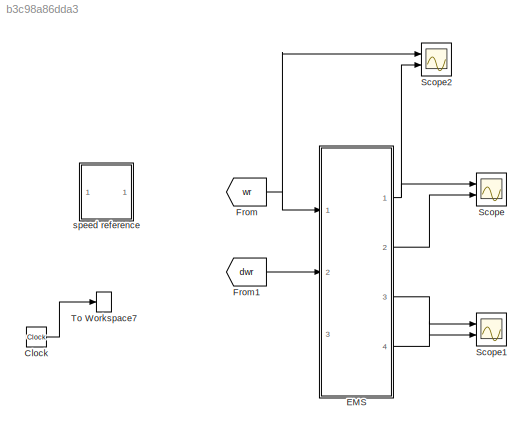
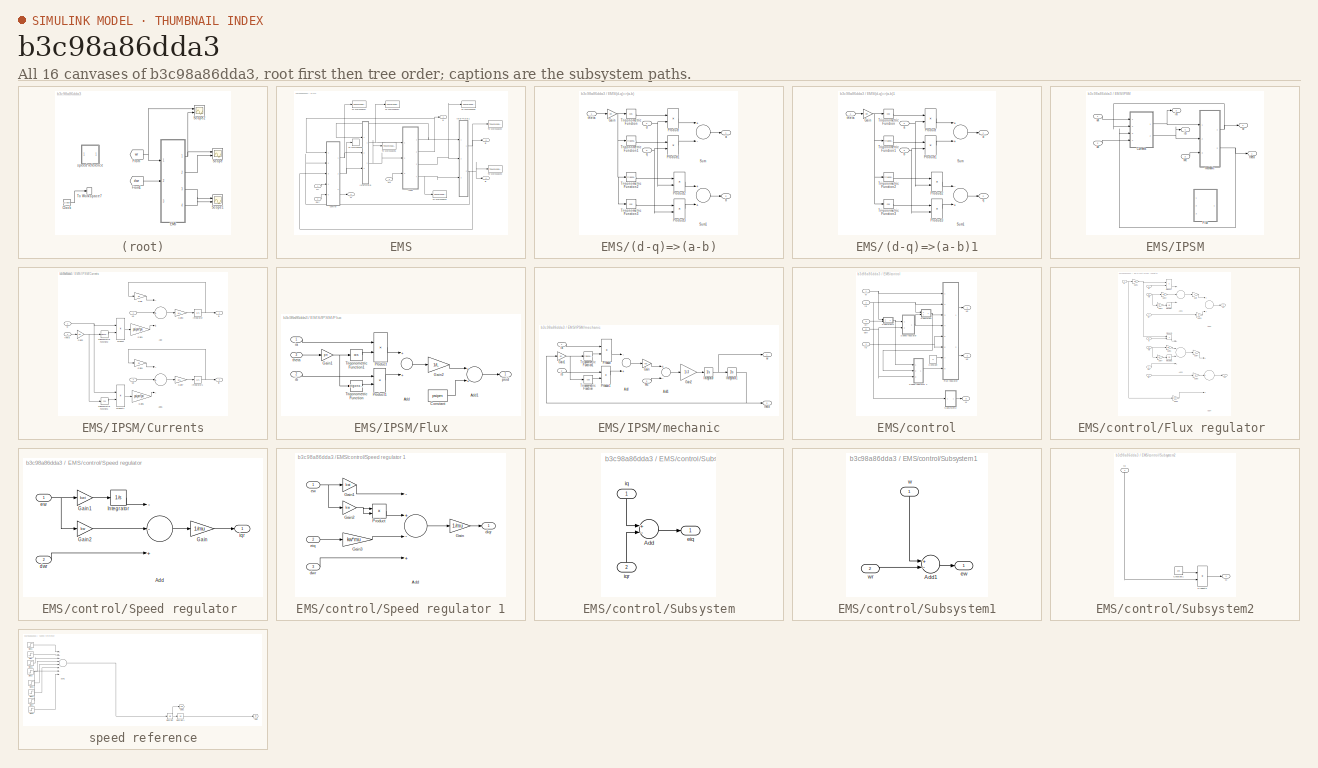
[diagram: thumbnail index - all 16 canvases of the model, root first then tree order]
MODEL slx_b3c98a86dda3
KIND model
BLOCK [Clock] Clock
BLOCK [SubSystem] EMS
  Ports = [3, 4]
  RequestExecContextInheritance = off
BLOCK [SubSystem] EMS/(d-q)=>(a-b)
  Ports = [3, 2]
  RequestExecContextInheritance = off
BLOCK [Gain] EMS/(d-q)=>(a-b)/Gain
  Gain = pn
  OutDataTypeStr = Inherit: Inherit via internal rule
  ParamDataTypeStr = Inherit: Inherit via internal rule
  SaturateOnIntegerOverflow = off
BLOCK [Product] EMS/(d-q)=>(a-b)/Product
  InputSameDT = off
  OutDataTypeStr = Inherit: Inherit via internal rule
  Ports = [2, 1]
  RndMeth = Floor
  SaturateOnIntegerOverflow = off
BLOCK [Product] EMS/(d-q)=>(a-b)/Product1
  InputSameDT = off
  OutDataTypeStr = Inherit: Inherit via internal rule
  Ports = [2, 1]
  RndMeth = Floor
  SaturateOnIntegerOverflow = off
BLOCK [Product] EMS/(d-q)=>(a-b)/Product2
  InputSameDT = off
  OutDataTypeStr = Inherit: Inherit via internal rule
  Ports = [2, 1]
  RndMeth = Floor
  SaturateOnIntegerOverflow = off
BLOCK [Product] EMS/(d-q)=>(a-b)/Product3
  InputSameDT = off
  OutDataTypeStr = Inherit: Inherit via internal rule
  Ports = [2, 1]
  RndMeth = Floor
  SaturateOnIntegerOverflow = off
BLOCK [Sum] EMS/(d-q)=>(a-b)/Sum
  Inputs = +-
  Ports = [2, 1]
BLOCK [Sum] EMS/(d-q)=>(a-b)/Sum1
  Ports = [2, 1]
BLOCK [Trigonometry] EMS/(d-q)=>(a-b)/Trigonometric Function
  Operator = cos
  Ports = [1, 1]
BLOCK [Trigonometry] EMS/(d-q)=>(a-b)/Trigonometric Function1
  Ports = [1, 1]
BLOCK [Trigonometry] EMS/(d-q)=>(a-b)/Trigonometric Function2
  Ports = [1, 1]
BLOCK [Trigonometry] EMS/(d-q)=>(a-b)/Trigonometric Function3
  Operator = cos
  Ports = [1, 1]
BLOCK [Outport] EMS/(d-q)=>(a-b)/a
  IconDisplay = Port number
BLOCK [Outport] EMS/(d-q)=>(a-b)/b
  IconDisplay = Port number
  Port = 2
BLOCK [Inport] EMS/(d-q)=>(a-b)/d
  IconDisplay = Port number
  Port = 2
BLOCK [Inport] EMS/(d-q)=>(a-b)/q
  IconDisplay = Port number
  Port = 3
BLOCK [Inport] EMS/(d-q)=>(a-b)/theta 
  IconDisplay = Port number
BLOCK [SubSystem] EMS/(d-q)=>(a-b)1
  Ports = [3, 2]
  RequestExecContextInheritance = off
BLOCK [Gain] EMS/(d-q)=>(a-b)1/Gain
  Gain = pn
  OutDataTypeStr = Inherit: Inherit via internal rule
  ParamDataTypeStr = Inherit: Inherit via internal rule
  SaturateOnIntegerOverflow = off
BLOCK [Product] EMS/(d-q)=>(a-b)1/Product
  InputSameDT = off
  OutDataTypeStr = Inherit: Inherit via internal rule
  Ports = [2, 1]
  RndMeth = Floor
  SaturateOnIntegerOverflow = off
BLOCK [Product] EMS/(d-q)=>(a-b)1/Product1
  InputSameDT = off
  OutDataTypeStr = Inherit: Inherit via internal rule
  Ports = [2, 1]
  RndMeth = Floor
  SaturateOnIntegerOverflow = off
BLOCK [Product] EMS/(d-q)=>(a-b)1/Product2
  InputSameDT = off
  OutDataTypeStr = Inherit: Inherit via internal rule
  Ports = [2, 1]
  RndMeth = Floor
  SaturateOnIntegerOverflow = off
BLOCK [Product] EMS/(d-q)=>(a-b)1/Product3
  InputSameDT = off
  OutDataTypeStr = Inherit: Inherit via internal rule
  Ports = [2, 1]
  RndMeth = Floor
  SaturateOnIntegerOverflow = off
BLOCK [Sum] EMS/(d-q)=>(a-b)1/Sum
  Ports = [2, 1]
BLOCK [Sum] EMS/(d-q)=>(a-b)1/Sum1
  Inputs = -+
  Ports = [2, 1]
BLOCK [Trigonometry] EMS/(d-q)=>(a-b)1/Trigonometric Function
  Operator = cos
  Ports = [1, 1]
BLOCK [Trigonometry] EMS/(d-q)=>(a-b)1/Trigonometric Function1
  Ports = [1, 1]
BLOCK [Trigonometry] EMS/(d-q)=>(a-b)1/Trigonometric Function2
  Ports = [1, 1]
BLOCK [Trigonometry] EMS/(d-q)=>(a-b)1/Trigonometric Function3
  Operator = cos
  Ports = [1, 1]
BLOCK [Inport] EMS/(d-q)=>(a-b)1/a
  IconDisplay = Port number
  Port = 2
BLOCK [Inport] EMS/(d-q)=>(a-b)1/b
  IconDisplay = Port number
  Port = 3
BLOCK [Outport] EMS/(d-q)=>(a-b)1/d
  IconDisplay = Port number
BLOCK [Outport] EMS/(d-q)=>(a-b)1/q
  IconDisplay = Port number
  Port = 2
BLOCK [Inport] EMS/(d-q)=>(a-b)1/theta 
  IconDisplay = Port number
BLOCK [SubSystem] EMS/IPSM
  Ports = [3, 4]
  RequestExecContextInheritance = off
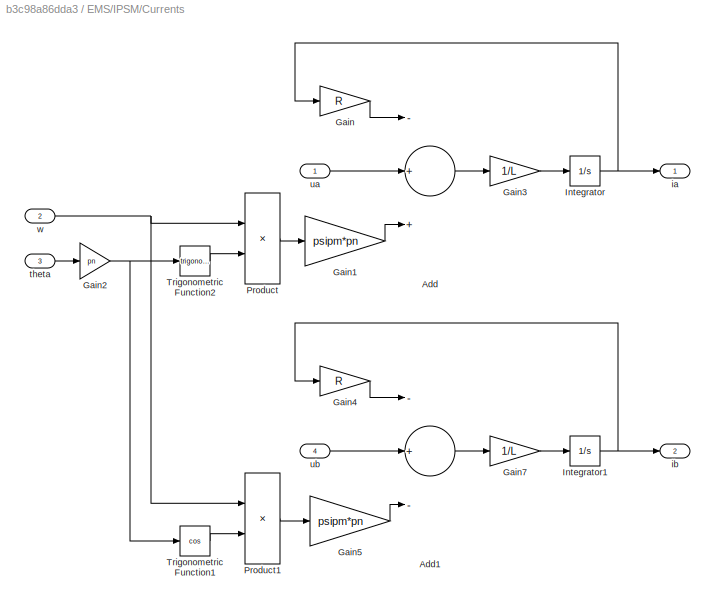
BLOCK [SubSystem] EMS/IPSM/Currents
  Ports = [4, 2]
  RequestExecContextInheritance = off
BLOCK [Sum] EMS/IPSM/Currents/Add
  InputSameDT = off
  Inputs = -++
  OutDataTypeStr = Inherit: Inherit via internal rule
  Ports = [3, 1]
  SaturateOnIntegerOverflow = off
BLOCK [Sum] EMS/IPSM/Currents/Add1
  InputSameDT = off
  Inputs = -+-
  OutDataTypeStr = Inherit: Inherit via internal rule
  Ports = [3, 1]
  SaturateOnIntegerOverflow = off
BLOCK [Gain] EMS/IPSM/Currents/Gain
  Gain = R
  OutDataTypeStr = Inherit: Inherit via internal rule
  ParamDataTypeStr = Inherit: Inherit via internal rule
  SaturateOnIntegerOverflow = off
BLOCK [Gain] EMS/IPSM/Currents/Gain1
  Gain = psipm*pn
  OutDataTypeStr = Inherit: Inherit via internal rule
  ParamDataTypeStr = Inherit: Inherit via internal rule
  SaturateOnIntegerOverflow = off
BLOCK [Gain] EMS/IPSM/Currents/Gain2
  Gain = pn
  OutDataTypeStr = Inherit: Inherit via internal rule
  ParamDataTypeStr = Inherit: Inherit via internal rule
  SaturateOnIntegerOverflow = off
BLOCK [Gain] EMS/IPSM/Currents/Gain3
  Gain = 1/L
  OutDataTypeStr = Inherit: Inherit via internal rule
  ParamDataTypeStr = Inherit: Inherit via internal rule
  SaturateOnIntegerOverflow = off
BLOCK [Gain] EMS/IPSM/Currents/Gain4
  Gain = R
  OutDataTypeStr = Inherit: Inherit via internal rule
  ParamDataTypeStr = Inherit: Inherit via internal rule
  SaturateOnIntegerOverflow = off
BLOCK [Gain] EMS/IPSM/Currents/Gain5
  Gain = psipm*pn
  OutDataTypeStr = Inherit: Inherit via internal rule
  ParamDataTypeStr = Inherit: Inherit via internal rule
  SaturateOnIntegerOverflow = off
BLOCK [Gain] EMS/IPSM/Currents/Gain7
  Gain = 1/L
  OutDataTypeStr = Inherit: Inherit via internal rule
  ParamDataTypeStr = Inherit: Inherit via internal rule
  SaturateOnIntegerOverflow = off
BLOCK [Integrator] EMS/IPSM/Currents/Integrator
  Ports = [1, 1]
BLOCK [Integrator] EMS/IPSM/Currents/Integrator1
  Ports = [1, 1]
BLOCK [Product] EMS/IPSM/Currents/Product
  InputSameDT = off
  OutDataTypeStr = Inherit: Inherit via internal rule
  Ports = [2, 1]
  RndMeth = Floor
  SaturateOnIntegerOverflow = off
BLOCK [Product] EMS/IPSM/Currents/Product1
  InputSameDT = off
  OutDataTypeStr = Inherit: Inherit via internal rule
  Ports = [2, 1]
  RndMeth = Floor
  SaturateOnIntegerOverflow = off
BLOCK [Trigonometry] EMS/IPSM/Currents/Trigonometric Function1
  Operator = cos
  Ports = [1, 1]
BLOCK [Trigonometry] EMS/IPSM/Currents/Trigonometric Function2
  Ports = [1, 1]
BLOCK [Outport] EMS/IPSM/Currents/ia
  IconDisplay = Port number
BLOCK [Outport] EMS/IPSM/Currents/ib
  IconDisplay = Port number
  Port = 2
BLOCK [Inport] EMS/IPSM/Currents/theta
  IconDisplay = Port number
  Port = 3
BLOCK [Inport] EMS/IPSM/Currents/ua
  IconDisplay = Port number
BLOCK [Inport] EMS/IPSM/Currents/ub
  IconDisplay = Port number
  Port = 4
BLOCK [Inport] EMS/IPSM/Currents/w
  IconDisplay = Port number
  Port = 2
BLOCK [SubSystem] EMS/IPSM/Flux
  Ports = [3, 1]
  RequestExecContextInheritance = off
BLOCK [Sum] EMS/IPSM/Flux/Add
  InputSameDT = off
  OutDataTypeStr = Inherit: Inherit via internal rule
  Ports = [2, 1]
  SaturateOnIntegerOverflow = off
BLOCK [Sum] EMS/IPSM/Flux/Add1
  InputSameDT = off
  OutDataTypeStr = Inherit: Inherit via internal rule
  Ports = [2, 1]
  SaturateOnIntegerOverflow = off
BLOCK [Constant] EMS/IPSM/Flux/Constant
  Value = psipm
BLOCK [Gain] EMS/IPSM/Flux/Gain1
  Gain = pn
  OutDataTypeStr = Inherit: Inherit via internal rule
  ParamDataTypeStr = Inherit: Inherit via internal rule
  SaturateOnIntegerOverflow = off
BLOCK [Gain] EMS/IPSM/Flux/Gain2
  Gain = 1/L
  OutDataTypeStr = Inherit: Inherit via internal rule
  ParamDataTypeStr = Inherit: Inherit via internal rule
  SaturateOnIntegerOverflow = off
BLOCK [Product] EMS/IPSM/Flux/Product
  InputSameDT = off
  OutDataTypeStr = Inherit: Inherit via internal rule
  Ports = [2, 1]
  RndMeth = Floor
  SaturateOnIntegerOverflow = off
BLOCK [Product] EMS/IPSM/Flux/Product1
  InputSameDT = off
  OutDataTypeStr = Inherit: Inherit via internal rule
  Ports = [2, 1]
  RndMeth = Floor
  SaturateOnIntegerOverflow = off
BLOCK [Trigonometry] EMS/IPSM/Flux/Trigonometric Function
  Ports = [1, 1]
BLOCK [Trigonometry] EMS/IPSM/Flux/Trigonometric Function1
  Operator = cos
  Ports = [1, 1]
BLOCK [Inport] EMS/IPSM/Flux/ia
  IconDisplay = Port number
BLOCK [Inport] EMS/IPSM/Flux/ib
  IconDisplay = Port number
  Port = 2
BLOCK [Outport] EMS/IPSM/Flux/psid
  IconDisplay = Port number
BLOCK [Inport] EMS/IPSM/Flux/theta
  IconDisplay = Port number
  Port = 3
BLOCK [Inport] EMS/IPSM/Mc
  IconDisplay = Port number
  Port = 3
BLOCK [Outport] EMS/IPSM/ia
  IconDisplay = Port number
  Port = 3
BLOCK [Outport] EMS/IPSM/ib
  IconDisplay = Port number
  Port = 4
BLOCK [SubSystem] EMS/IPSM/mechanic
  Ports = [3, 2]
  RequestExecContextInheritance = off
BLOCK [Sum] EMS/IPSM/mechanic/Add
  InputSameDT = off
  Inputs = -+
  OutDataTypeStr = Inherit: Inherit via internal rule
  Ports = [2, 1]
  SaturateOnIntegerOverflow = off
BLOCK [Sum] EMS/IPSM/mechanic/Add1
  InputSameDT = off
  Inputs = +-
  OutDataTypeStr = Inherit: Inherit via internal rule
  Ports = [2, 1]
  SaturateOnIntegerOverflow = off
BLOCK [Gain] EMS/IPSM/mechanic/Gain
  Gain = km
  OutDataTypeStr = Inherit: Inherit via internal rule
  ParamDataTypeStr = Inherit: Inherit via internal rule
  SaturateOnIntegerOverflow = off
BLOCK [Gain] EMS/IPSM/mechanic/Gain1
  Gain = pn
  OutDataTypeStr = Inherit: Inherit via internal rule
  ParamDataTypeStr = Inherit: Inherit via internal rule
  SaturateOnIntegerOverflow = off
BLOCK [Gain] EMS/IPSM/mechanic/Gain2
  Gain = 1/J
  OutDataTypeStr = Inherit: Inherit via internal rule
  ParamDataTypeStr = Inherit: Inherit via internal rule
  SaturateOnIntegerOverflow = off
BLOCK [Integrator] EMS/IPSM/mechanic/Integrator
  InitialCondition = 0.001
  Ports = [1, 1]
BLOCK [Integrator] EMS/IPSM/mechanic/Integrator1
  Ports = [1, 1]
BLOCK [Inport] EMS/IPSM/mechanic/Mc
  IconDisplay = Port number
  Port = 3
BLOCK [Product] EMS/IPSM/mechanic/Product
  InputSameDT = off
  OutDataTypeStr = Inherit: Inherit via internal rule
  Ports = [2, 1]
  RndMeth = Floor
  SaturateOnIntegerOverflow = off
BLOCK [Product] EMS/IPSM/mechanic/Product1
  InputSameDT = off
  OutDataTypeStr = Inherit: Inherit via internal rule
  Ports = [2, 1]
  RndMeth = Floor
  SaturateOnIntegerOverflow = off
BLOCK [Trigonometry] EMS/IPSM/mechanic/Trigonometric Function
  Operator = cos
  Ports = [1, 1]
BLOCK [Trigonometry] EMS/IPSM/mechanic/Trigonometric Function1
  Ports = [1, 1]
BLOCK [Inport] EMS/IPSM/mechanic/ia
  IconDisplay = Port number
BLOCK [Inport] EMS/IPSM/mechanic/ib
  IconDisplay = Port number
  Port = 2
BLOCK [Outport] EMS/IPSM/mechanic/theta
  IconDisplay = Port number
  Port = 2
BLOCK [Outport] EMS/IPSM/mechanic/w
  IconDisplay = Port number
BLOCK [Outport] EMS/IPSM/theta 
  IconDisplay = Port number
BLOCK [Inport] EMS/IPSM/ua
  IconDisplay = Port number
BLOCK [Inport] EMS/IPSM/ub
  IconDisplay = Port number
  Port = 2
BLOCK [Outport] EMS/IPSM/w
  IconDisplay = Port number
  Port = 2
BLOCK [Outport] EMS/M
  IconDisplay = Port number
  Port = 2
BLOCK [Inport] EMS/Mc
  IconDisplay = Port number
  Port = 3
BLOCK [ToWorkspace] EMS/To Workspace1
  FixptAsFi = on
  MaxDataPoints = inf
  Ports = [1]
  SampleTime = -1
  Save2DSignal = 3-D array (concatenate along third dimension)
  VariableName = ib
BLOCK [ToWorkspace] EMS/To Workspace2
  FixptAsFi = on
  MaxDataPoints = inf
  Ports = [1]
  SampleTime = -1
  Save2DSignal = 3-D array (concatenate along third dimension)
  VariableName = id
BLOCK [ToWorkspace] EMS/To Workspace3
  FixptAsFi = on
  MaxDataPoints = inf
  Ports = [1]
  SampleTime = -1
  Save2DSignal = 3-D array (concatenate along third dimension)
  VariableName = iq
BLOCK [ToWorkspace] EMS/To Workspace4
  FixptAsFi = on
  MaxDataPoints = inf
  Ports = [1]
  SampleTime = -1
  Save2DSignal = 3-D array (concatenate along third dimension)
  VariableName = ua
BLOCK [ToWorkspace] EMS/To Workspace5
  FixptAsFi = on
  MaxDataPoints = inf
  Ports = [1]
  SampleTime = -1
  Save2DSignal = 3-D array (concatenate along third dimension)
  VariableName = ub
BLOCK [ToWorkspace] EMS/To Workspace6
  FixptAsFi = on
  MaxDataPoints = inf
  Ports = [1]
  SampleTime = -1
  Save2DSignal = 3-D array (concatenate along third dimension)
  VariableName = ia
BLOCK [ToWorkspace] EMS/To Workspace7
  FixptAsFi = on
  MaxDataPoints = inf
  Ports = [1]
  SampleTime = -1
  Save2DSignal = 3-D array (concatenate along third dimension)
  VariableName = ud
BLOCK [ToWorkspace] EMS/To Workspace8
  FixptAsFi = on
  MaxDataPoints = inf
  Ports = [1]
  SampleTime = -1
  Save2DSignal = 3-D array (concatenate along third dimension)
  VariableName = uq
BLOCK [SubSystem] EMS/control
  Ports = [5, 3]
  RequestExecContextInheritance = off
BLOCK [Constant] EMS/control/Constant
  Value = 0
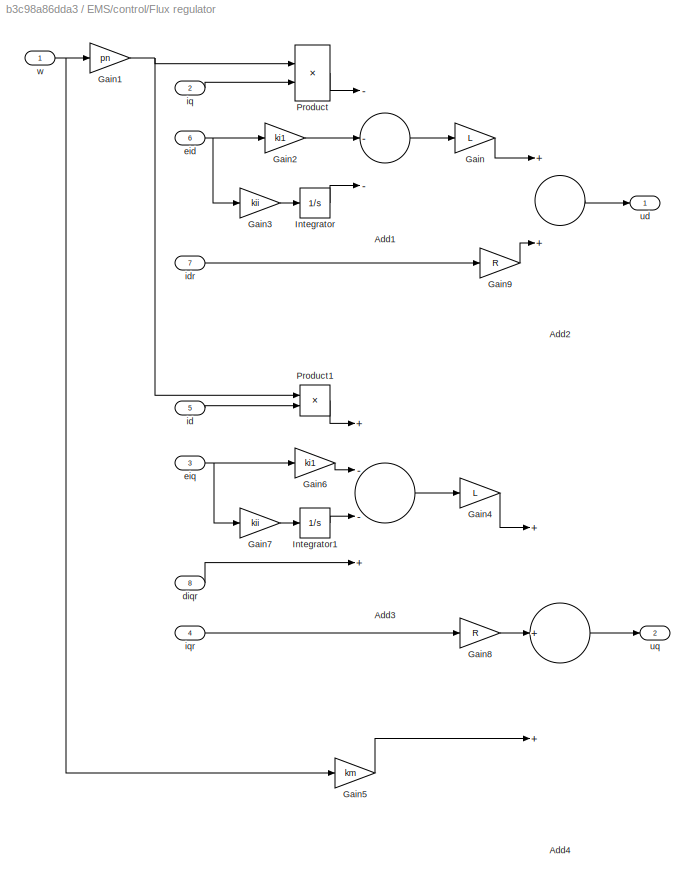
BLOCK [SubSystem] EMS/control/Flux regulator 
  Ports = [8, 2]
  RequestExecContextInheritance = off
BLOCK [Sum] EMS/control/Flux regulator /Add1
  InputSameDT = off
  Inputs = ---
  OutDataTypeStr = Inherit: Inherit via internal rule
  Ports = [3, 1]
  SaturateOnIntegerOverflow = off
BLOCK [Sum] EMS/control/Flux regulator /Add2
  InputSameDT = off
  OutDataTypeStr = Inherit: Inherit via internal rule
  Ports = [2, 1]
  SaturateOnIntegerOverflow = off
BLOCK [Sum] EMS/control/Flux regulator /Add3
  InputSameDT = off
  Inputs = +--+
  OutDataTypeStr = Inherit: Inherit via internal rule
  Ports = [4, 1]
  SaturateOnIntegerOverflow = off
BLOCK [Sum] EMS/control/Flux regulator /Add4
  InputSameDT = off
  Inputs = +++
  OutDataTypeStr = Inherit: Inherit via internal rule
  Ports = [3, 1]
  SaturateOnIntegerOverflow = off
BLOCK [Gain] EMS/control/Flux regulator /Gain
  Gain = L
  OutDataTypeStr = Inherit: Inherit via internal rule
  ParamDataTypeStr = Inherit: Inherit via internal rule
  SaturateOnIntegerOverflow = off
BLOCK [Gain] EMS/control/Flux regulator /Gain1
  Gain = pn
  OutDataTypeStr = Inherit: Inherit via internal rule
  ParamDataTypeStr = Inherit: Inherit via internal rule
  SaturateOnIntegerOverflow = off
BLOCK [Gain] EMS/control/Flux regulator /Gain2
  Gain = ki1
  OutDataTypeStr = Inherit: Inherit via internal rule
  ParamDataTypeStr = Inherit: Inherit via internal rule
  SaturateOnIntegerOverflow = off
BLOCK [Gain] EMS/control/Flux regulator /Gain3
  Gain = kii
  OutDataTypeStr = Inherit: Inherit via internal rule
  ParamDataTypeStr = Inherit: Inherit via internal rule
  SaturateOnIntegerOverflow = off
BLOCK [Gain] EMS/control/Flux regulator /Gain4
  Gain = L
  OutDataTypeStr = Inherit: Inherit via internal rule
  ParamDataTypeStr = Inherit: Inherit via internal rule
  SaturateOnIntegerOverflow = off
BLOCK [Gain] EMS/control/Flux regulator /Gain5
  Gain = km
  OutDataTypeStr = Inherit: Inherit via internal rule
  ParamDataTypeStr = Inherit: Inherit via internal rule
  SaturateOnIntegerOverflow = off
BLOCK [Gain] EMS/control/Flux regulator /Gain6
  Gain = ki1
  OutDataTypeStr = Inherit: Inherit via internal rule
  ParamDataTypeStr = Inherit: Inherit via internal rule
  SaturateOnIntegerOverflow = off
BLOCK [Gain] EMS/control/Flux regulator /Gain7
  Gain = kii
  OutDataTypeStr = Inherit: Inherit via internal rule
  ParamDataTypeStr = Inherit: Inherit via internal rule
  SaturateOnIntegerOverflow = off
BLOCK [Gain] EMS/control/Flux regulator /Gain8
  Gain = R
  OutDataTypeStr = Inherit: Inherit via internal rule
  ParamDataTypeStr = Inherit: Inherit via internal rule
  SaturateOnIntegerOverflow = off
BLOCK [Gain] EMS/control/Flux regulator /Gain9
  Gain = R
  OutDataTypeStr = Inherit: Inherit via internal rule
  ParamDataTypeStr = Inherit: Inherit via internal rule
  SaturateOnIntegerOverflow = off
BLOCK [Integrator] EMS/control/Flux regulator /Integrator
  Ports = [1, 1]
BLOCK [Integrator] EMS/control/Flux regulator /Integrator1
  Ports = [1, 1]
BLOCK [Product] EMS/control/Flux regulator /Product
  InputSameDT = off
  OutDataTypeStr = Inherit: Inherit via internal rule
  Ports = [2, 1]
  RndMeth = Floor
  SaturateOnIntegerOverflow = off
BLOCK [Product] EMS/control/Flux regulator /Product1
  InputSameDT = off
  OutDataTypeStr = Inherit: Inherit via internal rule
  Ports = [2, 1]
  RndMeth = Floor
  SaturateOnIntegerOverflow = off
BLOCK [Inport] EMS/control/Flux regulator /diqr
  IconDisplay = Port number
  Port = 8
BLOCK [Inport] EMS/control/Flux regulator /eid
  IconDisplay = Port number
  Port = 6
BLOCK [Inport] EMS/control/Flux regulator /eiq 
  IconDisplay = Port number
  Port = 3
BLOCK [Inport] EMS/control/Flux regulator /id
  IconDisplay = Port number
  Port = 5
BLOCK [Inport] EMS/control/Flux regulator /idr
  IconDisplay = Port number
  Port = 7
BLOCK [Inport] EMS/control/Flux regulator /iq
  IconDisplay = Port number
  Port = 2
BLOCK [Inport] EMS/control/Flux regulator /iqr 
  IconDisplay = Port number
  Port = 4
BLOCK [Outport] EMS/control/Flux regulator /ud
  IconDisplay = Port number
BLOCK [Outport] EMS/control/Flux regulator /uq 
  IconDisplay = Port number
  Port = 2
BLOCK [Inport] EMS/control/Flux regulator /w
  IconDisplay = Port number
BLOCK [Outport] EMS/control/M 
  IconDisplay = Port number
  Port = 3
BLOCK [SubSystem] EMS/control/Speed regulator 
  Ports = [2, 1]
  RequestExecContextInheritance = off
BLOCK [Sum] EMS/control/Speed regulator /Add
  InputSameDT = off
  Inputs = --+
  OutDataTypeStr = Inherit: Inherit via internal rule
  Ports = [3, 1]
  SaturateOnIntegerOverflow = off
BLOCK [Gain] EMS/control/Speed regulator /Gain
  Gain = 1/mu
  OutDataTypeStr = Inherit: Inherit via internal rule
  ParamDataTypeStr = Inherit: Inherit via internal rule
  SaturateOnIntegerOverflow = off
BLOCK [Gain] EMS/control/Speed regulator /Gain1
  Gain = kwi
  OutDataTypeStr = Inherit: Inherit via internal rule
  ParamDataTypeStr = Inherit: Inherit via internal rule
  SaturateOnIntegerOverflow = off
BLOCK [Gain] EMS/control/Speed regulator /Gain2
  Gain = kw
  OutDataTypeStr = Inherit: Inherit via internal rule
  ParamDataTypeStr = Inherit: Inherit via internal rule
  SaturateOnIntegerOverflow = off
BLOCK [Integrator] EMS/control/Speed regulator /Integrator
  Ports = [1, 1]
BLOCK [Inport] EMS/control/Speed regulator /dwr
  IconDisplay = Port number
  Port = 2
BLOCK [Inport] EMS/control/Speed regulator /ew
  IconDisplay = Port number
BLOCK [Outport] EMS/control/Speed regulator /iqr
  IconDisplay = Port number
BLOCK [SubSystem] EMS/control/Speed regulator 1
  Ports = [3, 1]
  RequestExecContextInheritance = off
BLOCK [Sum] EMS/control/Speed regulator 1/Add
  InputSameDT = off
  Inputs = -+-+
  OutDataTypeStr = Inherit: Inherit via internal rule
  Ports = [4, 1]
  SaturateOnIntegerOverflow = off
BLOCK [Gain] EMS/control/Speed regulator 1/Gain
  Gain = 1/mu
  OutDataTypeStr = Inherit: Inherit via internal rule
  ParamDataTypeStr = Inherit: Inherit via internal rule
  SaturateOnIntegerOverflow = off
BLOCK [Gain] EMS/control/Speed regulator 1/Gain1
  Gain = kwi
  OutDataTypeStr = Inherit: Inherit via internal rule
  ParamDataTypeStr = Inherit: Inherit via internal rule
  SaturateOnIntegerOverflow = off
BLOCK [Gain] EMS/control/Speed regulator 1/Gain2
  Gain = kw
  OutDataTypeStr = Inherit: Inherit via internal rule
  ParamDataTypeStr = Inherit: Inherit via internal rule
  SaturateOnIntegerOverflow = off
BLOCK [Gain] EMS/control/Speed regulator 1/Gain3
  Gain = kw*mu
  OutDataTypeStr = Inherit: Inherit via internal rule
  ParamDataTypeStr = Inherit: Inherit via internal rule
  SaturateOnIntegerOverflow = off
BLOCK [Product] EMS/control/Speed regulator 1/Product
  InputSameDT = off
  OutDataTypeStr = Inherit: Inherit via internal rule
  Ports = [2, 1]
  RndMeth = Floor
  SaturateOnIntegerOverflow = off
BLOCK [Outport] EMS/control/Speed regulator 1/diqr
  IconDisplay = Port number
BLOCK [Inport] EMS/control/Speed regulator 1/dwr
  IconDisplay = Port number
  Port = 3
BLOCK [Inport] EMS/control/Speed regulator 1/eiq
  IconDisplay = Port number
  Port = 2
BLOCK [Inport] EMS/control/Speed regulator 1/ew
  IconDisplay = Port number
BLOCK [SubSystem] EMS/control/Subsystem
  Ports = [2, 1]
  RequestExecContextInheritance = off
BLOCK [Sum] EMS/control/Subsystem/Add
  InputSameDT = off
  Inputs = +-
  OutDataTypeStr = Inherit: Inherit via internal rule
  Ports = [2, 1]
  SaturateOnIntegerOverflow = off
BLOCK [Outport] EMS/control/Subsystem/eiq
  IconDisplay = Port number
BLOCK [Inport] EMS/control/Subsystem/iq
  IconDisplay = Port number
BLOCK [Inport] EMS/control/Subsystem/iqr
  IconDisplay = Port number
  Port = 2
BLOCK [SubSystem] EMS/control/Subsystem1
  Ports = [2, 1]
  RequestExecContextInheritance = off
BLOCK [Sum] EMS/control/Subsystem1/Add1
  InputSameDT = off
  Inputs = +-
  OutDataTypeStr = Inherit: Inherit via internal rule
  Ports = [2, 1]
  SaturateOnIntegerOverflow = off
BLOCK [Outport] EMS/control/Subsystem1/ew
  IconDisplay = Port number
BLOCK [Inport] EMS/control/Subsystem1/w
  IconDisplay = Port number
BLOCK [Inport] EMS/control/Subsystem1/wr
  IconDisplay = Port number
  Port = 2
BLOCK [SubSystem] EMS/control/Subsystem2
  Ports = [1, 1]
  RequestExecContextInheritance = off
BLOCK [Constant] EMS/control/Subsystem2/Constant1
  Value = km
BLOCK [Outport] EMS/control/Subsystem2/M 
  IconDisplay = Port number
BLOCK [Product] EMS/control/Subsystem2/Product2
  InputSameDT = off
  OutDataTypeStr = Inherit: Inherit via internal rule
  Ports = [2, 1]
  RndMeth = Floor
  SaturateOnIntegerOverflow = off
BLOCK [Inport] EMS/control/Subsystem2/iq
  IconDisplay = Port number
BLOCK [Inport] EMS/control/dwr
  IconDisplay = Port number
  Port = 5
BLOCK [Inport] EMS/control/id
  IconDisplay = Port number
  Port = 3
BLOCK [Inport] EMS/control/iq
  IconDisplay = Port number
  Port = 2
BLOCK [Outport] EMS/control/ud
  IconDisplay = Port number
BLOCK [Outport] EMS/control/uq
  IconDisplay = Port number
  Port = 2
BLOCK [Inport] EMS/control/w
  IconDisplay = Port number
BLOCK [Inport] EMS/control/wr
  IconDisplay = Port number
  Port = 4
BLOCK [Inport] EMS/dwr
  IconDisplay = Port number
  Port = 2
BLOCK [Outport] EMS/id
  IconDisplay = Port number
  Port = 3
BLOCK [Outport] EMS/iq
  IconDisplay = Port number
  Port = 4
BLOCK [Outport] EMS/w
  IconDisplay = Port number
BLOCK [Inport] EMS/wr
  IconDisplay = Port number
BLOCK [From] From
  GotoTag = wr
  TagVisibility = global
BLOCK [From] From1
  GotoTag = dwr
  TagVisibility = global
BLOCK [Scope] Scope
  DataFormat = StructureWithTime
  Floating = off
  LimitDataPoints = off
  NumInputPorts = 2
  Ports = [2]
  SampleTime = 0
  SaveName = ScopeData7
  ShowLegends = off
  YMax = 1.008~164.85
  YMin = 0.912~149.15
BLOCK [Scope] Scope1
  DataFormat = StructureWithTime
  Floating = off
  LimitDataPoints = off
  NumInputPorts = 2
  Ports = [2]
  SampleTime = 0
  ShowLegends = off
  YMax = 1.008~164.85
  YMin = 0.912~149.15
BLOCK [Scope] Scope2
  DataFormat = StructureWithTime
  Floating = off
  LimitDataPoints = off
  NumInputPorts = 2
  Ports = [2]
  SampleTime = 0
  SaveName = ScopeData1
  ShowLegends = off
  YMax = 1.008~164.85
  YMin = 0.912~149.15
BLOCK [ToWorkspace] To Workspace7
  FixptAsFi = on
  MaxDataPoints = inf
  Ports = [1]
  SampleTime = -1
  Save2DSignal = 3-D array (concatenate along third dimension)
  VariableName = t
BLOCK [SubSystem] speed reference
  Ports = []
  RequestExecContextInheritance = off
BLOCK [Goto] speed reference/Goto
  GotoTag = wr
  TagVisibility = global
BLOCK [Goto] speed reference/Goto1
  GotoTag = dwr
  TagVisibility = global
BLOCK [Integrator] speed reference/Integrator
  Ports = [1, 1]
BLOCK [Integrator] speed reference/Integrator1
  Ports = [1, 1]
BLOCK [Step] speed reference/Step
  After = -wrmax/(ka*ta*ka*ta+ka*ta*(ta-2*ka*ta))
  Time = tex+ta*ka
BLOCK [Step] speed reference/Step1
  After = wrmax/(ka*ta*ka*ta+ka*ta*(ta-2*ka*ta))
  Time = tex
BLOCK [Step] speed reference/Step2
  After = wrmax/(ka*ta*ka*ta+ka*ta*(ta-2*ka*ta))
  Time = tex+ta
BLOCK [Step] speed reference/Step3
  After = -wrmax/(ka*ta*ka*ta+ka*ta*(ta-2*ka*ta))
  Time = tex+ta*ka+(ta-2*ta*ka)
BLOCK [Step] speed reference/Step4
  After = -wrmax/(ka*ta*ka*ta+ka*ta*(ta-2*ka*ta))
  Time = tex+ta+tcon+ta*ka
BLOCK [Step] speed reference/Step5
  After = wrmax/(ka*ta*ka*ta+ka*ta*(ta-2*ka*ta))
  Time = tex+ta+tcon
BLOCK [Step] speed reference/Step6
  After = wrmax/(ka*ta*ka*ta+ka*ta*(ta-2*ka*ta))
  Time = tex+ta+tcon+ta
BLOCK [Step] speed reference/Step7
  After = -wrmax/(ka*ta*ka*ta+ka*ta*(ta-2*ka*ta))
  Time = tex+ta+tcon+ta*ka+(ta-2*ta*ka)
BLOCK [Sum] speed reference/Sum1
  Inputs = ++++----
  Ports = [8, 1]
LINE Clock:1 -> To Workspace7:1
NET EMS/(d-q)=>(a-b)/Gain:1 -> EMS/(d-q)=>(a-b)/Trigonometric Function1:1, EMS/(d-q)=>(a-b)/Trigonometric Function2:1, EMS/(d-q)=>(a-b)/Trigonometric Function3:1, EMS/(d-q)=>(a-b)/Trigonometric Function:1
LINE EMS/(d-q)=>(a-b)/Product1:1 -> EMS/(d-q)=>(a-b)/Sum:2
LINE EMS/(d-q)=>(a-b)/Product2:1 -> EMS/(d-q)=>(a-b)/Sum1:1
LINE EMS/(d-q)=>(a-b)/Product3:1 -> EMS/(d-q)=>(a-b)/Sum1:2
LINE EMS/(d-q)=>(a-b)/Product:1 -> EMS/(d-q)=>(a-b)/Sum:1
LINE EMS/(d-q)=>(a-b)/Sum1:1 -> EMS/(d-q)=>(a-b)/b:1
LINE EMS/(d-q)=>(a-b)/Sum:1 -> EMS/(d-q)=>(a-b)/a:1
LINE EMS/(d-q)=>(a-b)/Trigonometric Function1:1 -> EMS/(d-q)=>(a-b)/Product1:1
LINE EMS/(d-q)=>(a-b)/Trigonometric Function2:1 -> EMS/(d-q)=>(a-b)/Product2:1
LINE EMS/(d-q)=>(a-b)/Trigonometric Function3:1 -> EMS/(d-q)=>(a-b)/Product3:1
LINE EMS/(d-q)=>(a-b)/Trigonometric Function:1 -> EMS/(d-q)=>(a-b)/Product:1
NET EMS/(d-q)=>(a-b)/d:1 -> EMS/(d-q)=>(a-b)/Product2:2, EMS/(d-q)=>(a-b)/Product:2
NET EMS/(d-q)=>(a-b)/q:1 -> EMS/(d-q)=>(a-b)/Product1:2, EMS/(d-q)=>(a-b)/Product3:2
LINE EMS/(d-q)=>(a-b)/theta :1 -> EMS/(d-q)=>(a-b)/Gain:1
NET EMS/(d-q)=>(a-b)1/Gain:1 -> EMS/(d-q)=>(a-b)1/Trigonometric Function1:1, EMS/(d-q)=>(a-b)1/Trigonometric Function2:1, EMS/(d-q)=>(a-b)1/Trigonometric Function3:1, EMS/(d-q)=>(a-b)1/Trigonometric Function:1
LINE EMS/(d-q)=>(a-b)1/Product1:1 -> EMS/(d-q)=>(a-b)1/Sum:2
LINE EMS/(d-q)=>(a-b)1/Product2:1 -> EMS/(d-q)=>(a-b)1/Sum1:1
LINE EMS/(d-q)=>(a-b)1/Product3:1 -> EMS/(d-q)=>(a-b)1/Sum1:2
LINE EMS/(d-q)=>(a-b)1/Product:1 -> EMS/(d-q)=>(a-b)1/Sum:1
LINE EMS/(d-q)=>(a-b)1/Sum1:1 -> EMS/(d-q)=>(a-b)1/q:1
LINE EMS/(d-q)=>(a-b)1/Sum:1 -> EMS/(d-q)=>(a-b)1/d:1
LINE EMS/(d-q)=>(a-b)1/Trigonometric Function1:1 -> EMS/(d-q)=>(a-b)1/Product1:1
LINE EMS/(d-q)=>(a-b)1/Trigonometric Function2:1 -> EMS/(d-q)=>(a-b)1/Product2:1
LINE EMS/(d-q)=>(a-b)1/Trigonometric Function3:1 -> EMS/(d-q)=>(a-b)1/Product3:1
LINE EMS/(d-q)=>(a-b)1/Trigonometric Function:1 -> EMS/(d-q)=>(a-b)1/Product:1
NET EMS/(d-q)=>(a-b)1/a:1 -> EMS/(d-q)=>(a-b)1/Product2:2, EMS/(d-q)=>(a-b)1/Product:2
NET EMS/(d-q)=>(a-b)1/b:1 -> EMS/(d-q)=>(a-b)1/Product1:2, EMS/(d-q)=>(a-b)1/Product3:2
LINE EMS/(d-q)=>(a-b)1/theta :1 -> EMS/(d-q)=>(a-b)1/Gain:1
NET EMS/(d-q)=>(a-b)1:1 -> EMS/To Workspace2:1, EMS/control:3, EMS/id:1
NET EMS/(d-q)=>(a-b)1:2 -> EMS/To Workspace3:1, EMS/control:2, EMS/iq:1
NET EMS/(d-q)=>(a-b):1 -> EMS/IPSM:1, EMS/To Workspace4:1
NET EMS/(d-q)=>(a-b):2 -> EMS/IPSM:2, EMS/To Workspace5:1
LINE EMS/IPSM/Currents/Add1:1 -> EMS/IPSM/Currents/Gain7:1
LINE EMS/IPSM/Currents/Add:1 -> EMS/IPSM/Currents/Gain3:1
LINE EMS/IPSM/Currents/Gain1:1 -> EMS/IPSM/Currents/Add:3
NET EMS/IPSM/Currents/Gain2:1 -> EMS/IPSM/Currents/Trigonometric Function1:1, EMS/IPSM/Currents/Trigonometric Function2:1
LINE EMS/IPSM/Currents/Gain3:1 -> EMS/IPSM/Currents/Integrator:1
LINE EMS/IPSM/Currents/Gain4:1 -> EMS/IPSM/Currents/Add1:1
LINE EMS/IPSM/Currents/Gain5:1 -> EMS/IPSM/Currents/Add1:3
LINE EMS/IPSM/Currents/Gain7:1 -> EMS/IPSM/Currents/Integrator1:1
LINE EMS/IPSM/Currents/Gain:1 -> EMS/IPSM/Currents/Add:1
NET EMS/IPSM/Currents/Integrator1:1 -> EMS/IPSM/Currents/Gain4:1, EMS/IPSM/Currents/ib:1
NET EMS/IPSM/Currents/Integrator:1 -> EMS/IPSM/Currents/Gain:1, EMS/IPSM/Currents/ia:1
LINE EMS/IPSM/Currents/Product1:1 -> EMS/IPSM/Currents/Gain5:1
LINE EMS/IPSM/Currents/Product:1 -> EMS/IPSM/Currents/Gain1:1
LINE EMS/IPSM/Currents/Trigonometric Function1:1 -> EMS/IPSM/Currents/Product1:2
LINE EMS/IPSM/Currents/Trigonometric Function2:1 -> EMS/IPSM/Currents/Product:2
LINE EMS/IPSM/Currents/theta:1 -> EMS/IPSM/Currents/Gain2:1
LINE EMS/IPSM/Currents/ua:1 -> EMS/IPSM/Currents/Add:2
LINE EMS/IPSM/Currents/ub:1 -> EMS/IPSM/Currents/Add1:2
NET EMS/IPSM/Currents/w:1 -> EMS/IPSM/Currents/Product1:1, EMS/IPSM/Currents/Product:1
NET EMS/IPSM/Currents:1 -> EMS/IPSM/ia:1, EMS/IPSM/mechanic:1
NET EMS/IPSM/Currents:2 -> EMS/IPSM/ib:1, EMS/IPSM/mechanic:2
LINE EMS/IPSM/Flux/Add1:1 -> EMS/IPSM/Flux/psid:1
LINE EMS/IPSM/Flux/Add:1 -> EMS/IPSM/Flux/Gain2:1
LINE EMS/IPSM/Flux/Constant:1 -> EMS/IPSM/Flux/Add1:2
NET EMS/IPSM/Flux/Gain1:1 -> EMS/IPSM/Flux/Trigonometric Function1:1, EMS/IPSM/Flux/Trigonometric Function:1
LINE EMS/IPSM/Flux/Gain2:1 -> EMS/IPSM/Flux/Add1:1
LINE EMS/IPSM/Flux/Product1:1 -> EMS/IPSM/Flux/Add:2
LINE EMS/IPSM/Flux/Product:1 -> EMS/IPSM/Flux/Add:1
LINE EMS/IPSM/Flux/Trigonometric Function1:1 -> EMS/IPSM/Flux/Product:2
LINE EMS/IPSM/Flux/Trigonometric Function:1 -> EMS/IPSM/Flux/Product1:2
LINE EMS/IPSM/Flux/ia:1 -> EMS/IPSM/Flux/Product:1
LINE EMS/IPSM/Flux/ib:1 -> EMS/IPSM/Flux/Product1:1
LINE EMS/IPSM/Flux/theta:1 -> EMS/IPSM/Flux/Gain1:1
LINE EMS/IPSM/Mc:1 -> EMS/IPSM/mechanic:3
LINE EMS/IPSM/mechanic/Add1:1 -> EMS/IPSM/mechanic/Gain2:1
LINE EMS/IPSM/mechanic/Add:1 -> EMS/IPSM/mechanic/Gain:1
NET EMS/IPSM/mechanic/Gain1:1 -> EMS/IPSM/mechanic/Trigonometric Function1:1, EMS/IPSM/mechanic/Trigonometric Function:1
LINE EMS/IPSM/mechanic/Gain2:1 -> EMS/IPSM/mechanic/Integrator:1
LINE EMS/IPSM/mechanic/Gain:1 -> EMS/IPSM/mechanic/Add1:1
NET EMS/IPSM/mechanic/Integrator1:1 -> EMS/IPSM/mechanic/Gain1:1, EMS/IPSM/mechanic/theta:1
NET EMS/IPSM/mechanic/Integrator:1 -> EMS/IPSM/mechanic/Integrator1:1, EMS/IPSM/mechanic/w:1
LINE EMS/IPSM/mechanic/Mc:1 -> EMS/IPSM/mechanic/Add1:2
LINE EMS/IPSM/mechanic/Product1:1 -> EMS/IPSM/mechanic/Add:2
LINE EMS/IPSM/mechanic/Product:1 -> EMS/IPSM/mechanic/Add:1
LINE EMS/IPSM/mechanic/Trigonometric Function1:1 -> EMS/IPSM/mechanic/Product:2
LINE EMS/IPSM/mechanic/Trigonometric Function:1 -> EMS/IPSM/mechanic/Product1:2
LINE EMS/IPSM/mechanic/ia:1 -> EMS/IPSM/mechanic/Product:1
LINE EMS/IPSM/mechanic/ib:1 -> EMS/IPSM/mechanic/Product1:1
NET EMS/IPSM/mechanic:1 -> EMS/IPSM/Currents:2, EMS/IPSM/w:1
NET EMS/IPSM/mechanic:2 -> EMS/IPSM/Currents:3, EMS/IPSM/theta :1
LINE EMS/IPSM/ua:1 -> EMS/IPSM/Currents:1
LINE EMS/IPSM/ub:1 -> EMS/IPSM/Currents:4
NET EMS/IPSM:1 -> EMS/(d-q)=>(a-b)1:1, EMS/(d-q)=>(a-b):1
NET EMS/IPSM:2 -> EMS/control:1, EMS/w:1
NET EMS/IPSM:3 -> EMS/(d-q)=>(a-b)1:2, EMS/To Workspace6:1
NET EMS/IPSM:4 -> EMS/(d-q)=>(a-b)1:3, EMS/To Workspace1:1
LINE EMS/Mc:1 -> EMS/IPSM:3
LINE EMS/control/Constant:1 -> EMS/control/Flux regulator :7
LINE EMS/control/Flux regulator /Add1:1 -> EMS/control/Flux regulator /Gain:1
LINE EMS/control/Flux regulator /Add2:1 -> EMS/control/Flux regulator /ud:1
LINE EMS/control/Flux regulator /Add3:1 -> EMS/control/Flux regulator /Gain4:1
LINE EMS/control/Flux regulator /Add4:1 -> EMS/control/Flux regulator /uq :1
NET EMS/control/Flux regulator /Gain1:1 -> EMS/control/Flux regulator /Product1:1, EMS/control/Flux regulator /Product:1
LINE EMS/control/Flux regulator /Gain2:1 -> EMS/control/Flux regulator /Add1:2
LINE EMS/control/Flux regulator /Gain3:1 -> EMS/control/Flux regulator /Integrator:1
LINE EMS/control/Flux regulator /Gain4:1 -> EMS/control/Flux regulator /Add4:1
LINE EMS/control/Flux regulator /Gain5:1 -> EMS/control/Flux regulator /Add4:3
LINE EMS/control/Flux regulator /Gain6:1 -> EMS/control/Flux regulator /Add3:2
LINE EMS/control/Flux regulator /Gain7:1 -> EMS/control/Flux regulator /Integrator1:1
LINE EMS/control/Flux regulator /Gain8:1 -> EMS/control/Flux regulator /Add4:2
LINE EMS/control/Flux regulator /Gain9:1 -> EMS/control/Flux regulator /Add2:2
LINE EMS/control/Flux regulator /Gain:1 -> EMS/control/Flux regulator /Add2:1
LINE EMS/control/Flux regulator /Integrator1:1 -> EMS/control/Flux regulator /Add3:3
LINE EMS/control/Flux regulator /Integrator:1 -> EMS/control/Flux regulator /Add1:3
LINE EMS/control/Flux regulator /Product1:1 -> EMS/control/Flux regulator /Add3:1
LINE EMS/control/Flux regulator /Product:1 -> EMS/control/Flux regulator /Add1:1
LINE EMS/control/Flux regulator /diqr:1 -> EMS/control/Flux regulator /Add3:4
NET EMS/control/Flux regulator /eid:1 -> EMS/control/Flux regulator /Gain2:1, EMS/control/Flux regulator /Gain3:1
NET EMS/control/Flux regulator /eiq :1 -> EMS/control/Flux regulator /Gain6:1, EMS/control/Flux regulator /Gain7:1
LINE EMS/control/Flux regulator /id:1 -> EMS/control/Flux regulator /Product1:2
LINE EMS/control/Flux regulator /idr:1 -> EMS/control/Flux regulator /Gain9:1
LINE EMS/control/Flux regulator /iq:1 -> EMS/control/Flux regulator /Product:2
LINE EMS/control/Flux regulator /iqr :1 -> EMS/control/Flux regulator /Gain8:1
NET EMS/control/Flux regulator /w:1 -> EMS/control/Flux regulator /Gain1:1, EMS/control/Flux regulator /Gain5:1
LINE EMS/control/Flux regulator :1 -> EMS/control/ud:1
LINE EMS/control/Flux regulator :2 -> EMS/control/uq:1
LINE EMS/control/Speed regulator /Add:1 -> EMS/control/Speed regulator /Gain:1
LINE EMS/control/Speed regulator /Gain1:1 -> EMS/control/Speed regulator /Integrator:1
LINE EMS/control/Speed regulator /Gain2:1 -> EMS/control/Speed regulator /Add:2
LINE EMS/control/Speed regulator /Gain:1 -> EMS/control/Speed regulator /iqr:1
LINE EMS/control/Speed regulator /Integrator:1 -> EMS/control/Speed regulator /Add:1
LINE EMS/control/Speed regulator /dwr:1 -> EMS/control/Speed regulator /Add:3
NET EMS/control/Speed regulator /ew:1 -> EMS/control/Speed regulator /Gain1:1, EMS/control/Speed regulator /Gain2:1
LINE EMS/control/Speed regulator 1/Add:1 -> EMS/control/Speed regulator 1/Gain:1
LINE EMS/control/Speed regulator 1/Gain1:1 -> EMS/control/Speed regulator 1/Add:1
NET EMS/control/Speed regulator 1/Gain2:1 -> EMS/control/Speed regulator 1/Product:1, EMS/control/Speed regulator 1/Product:2
LINE EMS/control/Speed regulator 1/Gain3:1 -> EMS/control/Speed regulator 1/Add:3
LINE EMS/control/Speed regulator 1/Gain:1 -> EMS/control/Speed regulator 1/diqr:1
LINE EMS/control/Speed regulator 1/Product:1 -> EMS/control/Speed regulator 1/Add:2
LINE EMS/control/Speed regulator 1/dwr:1 -> EMS/control/Speed regulator 1/Add:4
LINE EMS/control/Speed regulator 1/eiq:1 -> EMS/control/Speed regulator 1/Gain3:1
NET EMS/control/Speed regulator 1/ew:1 -> EMS/control/Speed regulator 1/Gain1:1, EMS/control/Speed regulator 1/Gain2:1
LINE EMS/control/Speed regulator 1:1 -> EMS/control/Flux regulator :8
NET EMS/control/Speed regulator :1 -> EMS/control/Flux regulator :4, EMS/control/Subsystem:2
LINE EMS/control/Subsystem/Add:1 -> EMS/control/Subsystem/eiq:1
LINE EMS/control/Subsystem/iq:1 -> EMS/control/Subsystem/Add:1
LINE EMS/control/Subsystem/iqr:1 -> EMS/control/Subsystem/Add:2
LINE EMS/control/Subsystem1/Add1:1 -> EMS/control/Subsystem1/ew:1
LINE EMS/control/Subsystem1/w:1 -> EMS/control/Subsystem1/Add1:1
LINE EMS/control/Subsystem1/wr:1 -> EMS/control/Subsystem1/Add1:2
NET EMS/control/Subsystem1:1 -> EMS/control/Speed regulator 1:1, EMS/control/Speed regulator :1
LINE EMS/control/Subsystem2/Constant1:1 -> EMS/control/Subsystem2/Product2:1
LINE EMS/control/Subsystem2/Product2:1 -> EMS/control/Subsystem2/M :1
LINE EMS/control/Subsystem2/iq:1 -> EMS/control/Subsystem2/Product2:2
LINE EMS/control/Subsystem2:1 -> EMS/control/M :1
NET EMS/control/Subsystem:1 -> EMS/control/Flux regulator :3, EMS/control/Speed regulator 1:2
NET EMS/control/dwr:1 -> EMS/control/Speed regulator 1:3, EMS/control/Speed regulator :2
NET EMS/control/id:1 -> EMS/control/Flux regulator :5, EMS/control/Flux regulator :6
NET EMS/control/iq:1 -> EMS/control/Flux regulator :2, EMS/control/Subsystem2:1, EMS/control/Subsystem:1
NET EMS/control/w:1 -> EMS/control/Flux regulator :1, EMS/control/Subsystem1:1
LINE EMS/control/wr:1 -> EMS/control/Subsystem1:2
NET EMS/control:1 -> EMS/(d-q)=>(a-b):2, EMS/To Workspace7:1
NET EMS/control:2 -> EMS/(d-q)=>(a-b):3, EMS/To Workspace8:1
LINE EMS/control:3 -> EMS/M:1
LINE EMS/dwr:1 -> EMS/control:5
LINE EMS/wr:1 -> EMS/control:4
NET EMS:1 -> Scope2:2, Scope:1
LINE EMS:2 -> Scope:2
LINE EMS:3 -> Scope1:1
LINE EMS:4 -> Scope1:2
LINE From1:1 -> EMS:2
NET From:1 -> EMS:1, Scope2:1
LINE speed reference/Integrator1:1 -> speed reference/Goto:1
NET speed reference/Integrator:1 -> speed reference/Goto1:1, speed reference/Integrator1:1
LINE speed reference/Step1:1 -> speed reference/Sum1:1
LINE speed reference/Step2:1 -> speed reference/Sum1:4
LINE speed reference/Step3:1 -> speed reference/Sum1:3
LINE speed reference/Step4:1 -> speed reference/Sum1:6
LINE speed reference/Step5:1 -> speed reference/Sum1:5
LINE speed reference/Step6:1 -> speed reference/Sum1:8
LINE speed reference/Step7:1 -> speed reference/Sum1:7
LINE speed reference/Step:1 -> speed reference/Sum1:2
LINE speed reference/Sum1:1 -> speed reference/Integrator:1
note: NET lines group one-source signal fan-out (src -> all destinations, sorted); 1:1 wires keep LINE
